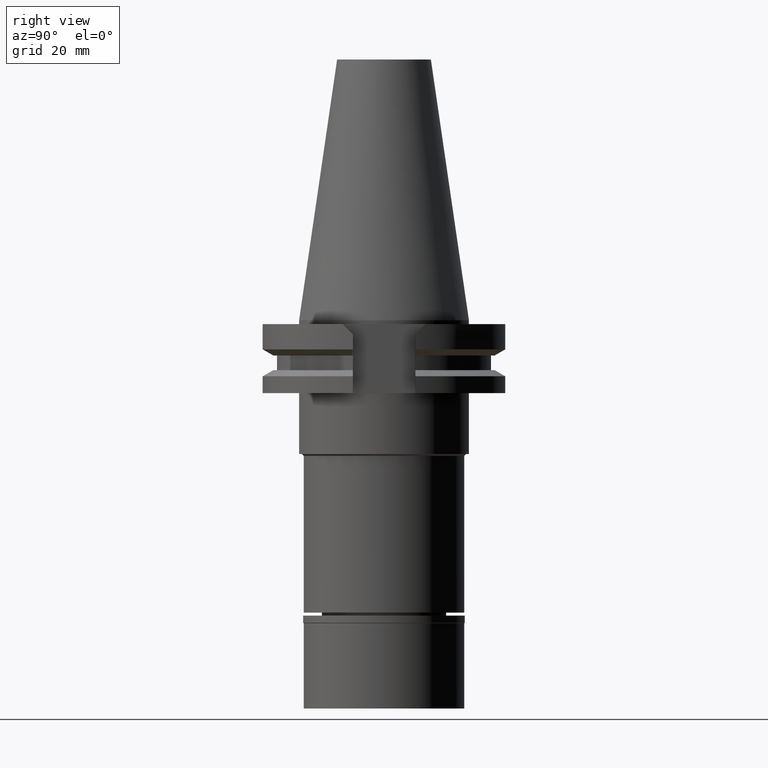
[diagram: clean part render]
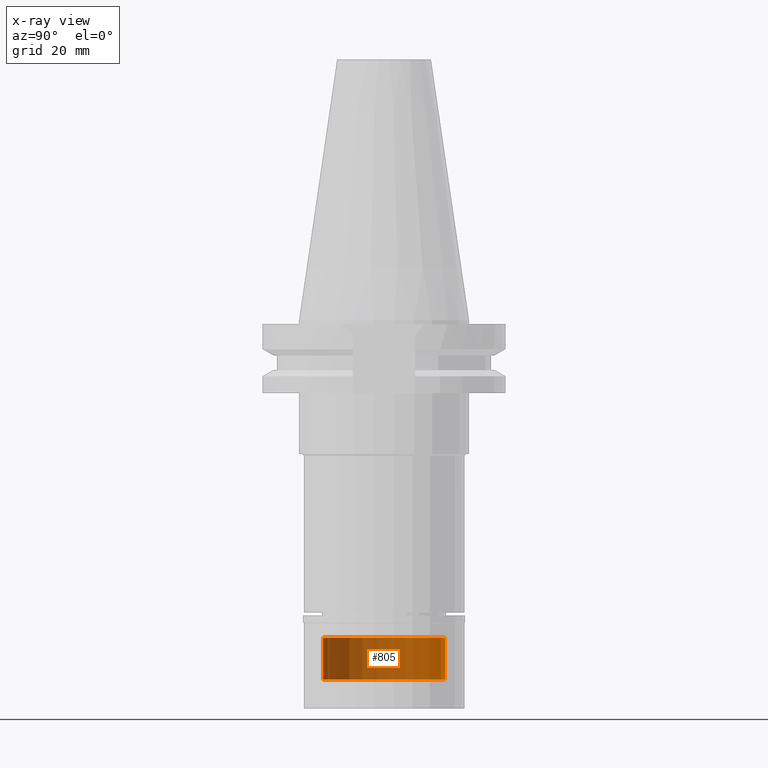
[diagram: x-ray — body ghosted, one internal face saturated and labeled with its STEP entity id]
A machine part, right view, then the same camera in x-ray: the body is ghosted and one INTERNAL B-rep face — a face not visible from any outside direction — is saturated and labeled: STEP entity #805.
In plain terms, the highlighted cylindrical surface (partial cylindrical patch) has radius 16 mm, axis along (0, 0, -1).
Its self-contained STEP definition (entity closure, byte-faithful):
#26 = VERTEX_POINT ( 'NONE', #2792 ) ;
#111 = CIRCLE ( 'NONE', #1860, 16.00000000000000000 ) ;
#127 = FACE_OUTER_BOUND ( 'NONE', #848, .T. ) ;
#184 = ORIENTED_EDGE ( 'NONE', *, *, #2880, .T. ) ;
#261 = VERTEX_POINT ( 'NONE', #1460 ) ;
#459 = ORIENTED_EDGE ( 'NONE', *, *, #2764, .F. ) ;
#513 = CARTESIAN_POINT ( 'NONE',  ( 0.0000000000000000000, 2.159878943485999787E-14, -83.09999999999999432 ) ) ;
#516 = VERTEX_POINT ( 'NONE', #1080 ) ;
#558 = DIRECTION ( 'NONE',  ( 0.0000000000000000000, 0.0000000000000000000, -1.000000000000000000 ) ) ;
#562 = CARTESIAN_POINT ( 'NONE',  ( 0.0000000000000000000, 2.159878943485999787E-14, -94.10000000000000853 ) ) ;
#599 = ORIENTED_EDGE ( 'NONE', *, *, #660, .T. ) ;
#660 = EDGE_CURVE ( 'NONE', #2588, #26, #111, .T. ) ;
#805 = ADVANCED_FACE ( 'NONE', ( #127 ), #1150, .T. ) ;
#848 = EDGE_LOOP ( 'NONE', ( #599, #459, #2892, #184 ) ) ;
#888 = CARTESIAN_POINT ( 'NONE',  ( 0.0000000000000000000, 16.00000000000000000, -94.10000000000000853 ) ) ;
#1080 = CARTESIAN_POINT ( 'NONE',  ( 0.0000000000000000000, 16.00000000000000000, -83.09999999999999432 ) ) ;
#1150 = CYLINDRICAL_SURFACE ( 'NONE', #2119, 16.00000000000000000 ) ;
#1247 = AXIS2_PLACEMENT_3D ( 'NONE', #513, #2821, #2566 ) ;
#1307 = LINE ( 'NONE', #3055, #1803 ) ;
#1313 = VECTOR ( 'NONE', #2536, 1000.000000000000000 ) ;
#1460 = CARTESIAN_POINT ( 'NONE',  ( 0.0000000000000000000, -16.00000000000000000, -83.09999999999999432 ) ) ;
#1803 = VECTOR ( 'NONE', #558, 1000.000000000000000 ) ;
#1860 = AXIS2_PLACEMENT_3D ( 'NONE', #562, #2589, #2864 ) ;
#1992 = LINE ( 'NONE', #3005, #1313 ) ;
#2089 = EDGE_CURVE ( 'NONE', #261, #516, #3181, .T. ) ;
#2119 = AXIS2_PLACEMENT_3D ( 'NONE', #2207, #2752, #2777 ) ;
#2207 = CARTESIAN_POINT ( 'NONE',  ( 0.0000000000000000000, 2.159878943485999787E-14, 76.36750000000000682 ) ) ;
#2536 = DIRECTION ( 'NONE',  ( 0.0000000000000000000, 0.0000000000000000000, -1.000000000000000000 ) ) ;
#2566 = DIRECTION ( 'NONE',  ( 0.0000000000000000000, -1.000000000000000000, 0.0000000000000000000 ) ) ;
#2588 = VERTEX_POINT ( 'NONE', #888 ) ;
#2589 = DIRECTION ( 'NONE',  ( 0.0000000000000000000, 0.0000000000000000000, 1.000000000000000000 ) ) ;
#2752 = DIRECTION ( 'NONE',  ( 0.0000000000000000000, 0.0000000000000000000, -1.000000000000000000 ) ) ;
#2764 = EDGE_CURVE ( 'NONE', #261, #26, #1992, .T. ) ;
#2777 = DIRECTION ( 'NONE',  ( 0.0000000000000000000, -1.000000000000000000, 0.0000000000000000000 ) ) ;
#2792 = CARTESIAN_POINT ( 'NONE',  ( 0.0000000000000000000, -16.00000000000000000, -94.10000000000000853 ) ) ;
#2821 = DIRECTION ( 'NONE',  ( 0.0000000000000000000, 0.0000000000000000000, -1.000000000000000000 ) ) ;
#2864 = DIRECTION ( 'NONE',  ( 0.0000000000000000000, 1.000000000000000000, 0.0000000000000000000 ) ) ;
#2880 = EDGE_CURVE ( 'NONE', #516, #2588, #1307, .T. ) ;
#2892 = ORIENTED_EDGE ( 'NONE', *, *, #2089, .T. ) ;
#3005 = CARTESIAN_POINT ( 'NONE',  ( 0.0000000000000000000, -16.00000000000000000, -83.09999999999999432 ) ) ;
#3055 = CARTESIAN_POINT ( 'NONE',  ( 0.0000000000000000000, 16.00000000000000000, -83.09999999999999432 ) ) ;
#3181 = CIRCLE ( 'NONE', #1247, 16.00000000000000000 ) ;